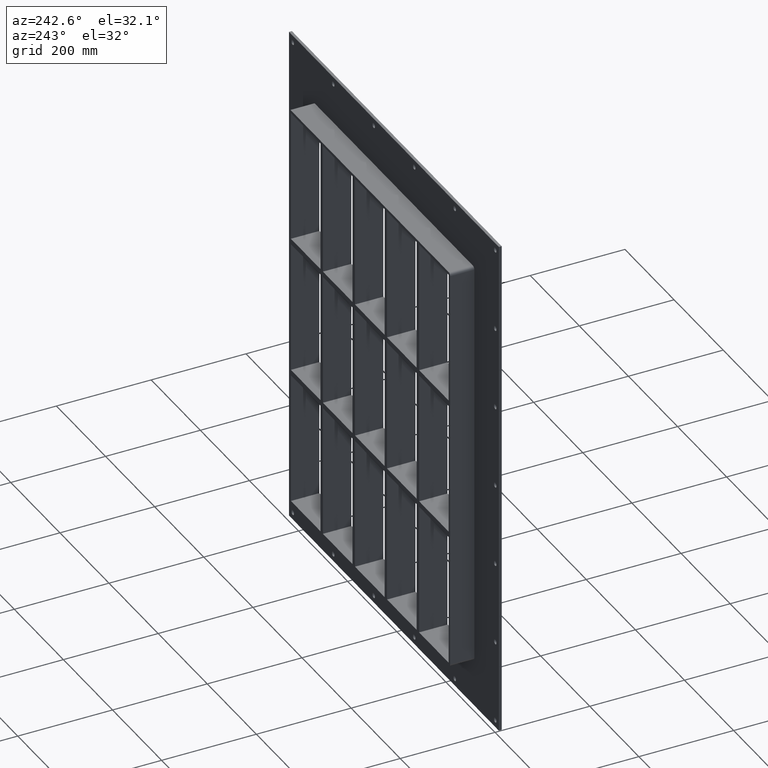
[diagram: clean part render]
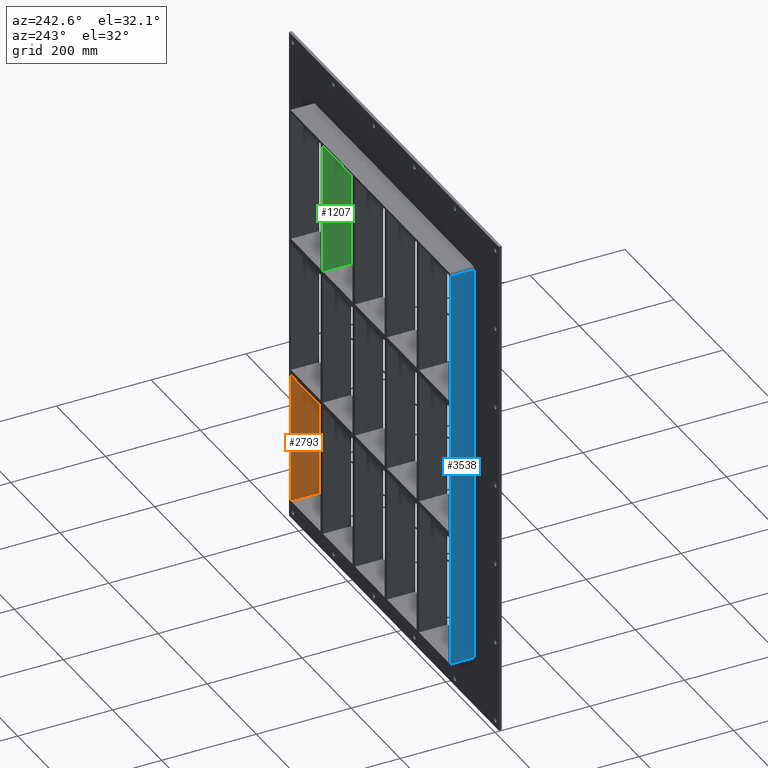
[diagram: same view with three faces highlighted in distinct colors, each labeled with its STEP entity id]
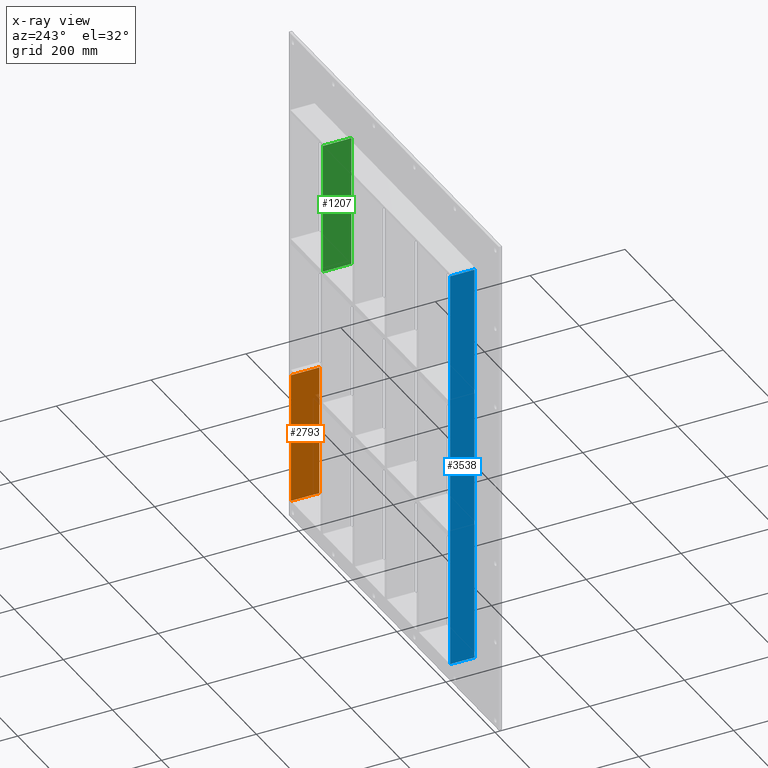
[diagram: x-ray of the same camera — body ghosted, the three highlighted faces saturated]
A machine part, auxiliary view with three faces highlighted in distinct colors.
The next image is the same camera in x-ray (body ghosted, the three faces saturated) — at least one of them is partly hidden behind the body in this view.
Their STEP definitions:

[orange] entity #2793 — the highlighted planar face has unit normal (1, 0, 0).
#1835=CARTESIAN_POINT('',(321.25000000000006,57.0,-429.00000000000006));
#1836=VERTEX_POINT('',#1835);
#1843=CARTESIAN_POINT('',(321.25000000000006,57.0,-151.00000000000929));
#1844=VERTEX_POINT('',#1843);
#1845=CARTESIAN_POINT('',(321.25000000000006,57.0,-429.00000000000006));
#1846=DIRECTION('',(0.0,0.0,1.0));
#1847=VECTOR('',#1846,277.99999999999079);
#1848=LINE('',#1845,#1847);
#1849=EDGE_CURVE('',#1836,#1844,#1848,.T.);
#2262=CARTESIAN_POINT('',(321.25000000000006,-3.0,-429.00000000000006));
#2263=VERTEX_POINT('',#2262);
#2270=CARTESIAN_POINT('',(321.25000000000006,56.999999999999993,-429.00000000000006));
#2271=DIRECTION('',(0.0,-1.0,0.0));
#2272=VECTOR('',#2271,59.999999999999993);
#2273=LINE('',#2270,#2272);
#2274=EDGE_CURVE('',#1836,#2263,#2273,.T.);
#2520=CARTESIAN_POINT('',(321.25,-3.0,-151.00000000000929));
#2521=VERTEX_POINT('',#2520);
#2528=CARTESIAN_POINT('',(321.25000000000006,-3.0,-151.00000000000927));
#2529=DIRECTION('',(0.0,0.0,-1.0));
#2530=VECTOR('',#2529,277.99999999999079);
#2531=LINE('',#2528,#2530);
#2532=EDGE_CURVE('',#2521,#2263,#2531,.T.);
#2579=CARTESIAN_POINT('',(321.25000000000006,-3.0,-151.00000000000929));
#2580=DIRECTION('',(0.0,1.0,0.0));
#2581=VECTOR('',#2580,60.000000000000007);
#2582=LINE('',#2579,#2581);
#2583=EDGE_CURVE('',#2521,#1844,#2582,.T.);
#2782=CARTESIAN_POINT('',(321.25000000000006,0.0,429.00000000000006));
#2783=DIRECTION('',(1.0,0.0,0.0));
#2784=DIRECTION('',(0.0,0.0,-1.0));
#2785=AXIS2_PLACEMENT_3D('',#2782,#2783,#2784);
#2786=PLANE('',#2785);
#2787=ORIENTED_EDGE('',*,*,#2583,.T.);
#2788=ORIENTED_EDGE('',*,*,#1849,.F.);
#2789=ORIENTED_EDGE('',*,*,#2274,.T.);
#2790=ORIENTED_EDGE('',*,*,#2532,.F.);
#2791=EDGE_LOOP('',(#2787,#2788,#2789,#2790));
#2792=FACE_OUTER_BOUND('',#2791,.T.);
#2793=ADVANCED_FACE('',(#2792),#2786,.F.);

[blue] entity #3538 — the highlighted planar face has unit normal (-1, 0, 0).
#1480=CARTESIAN_POINT('',(-327.25000000000011,57.0,-429.00000000000006));
#1481=VERTEX_POINT('',#1480);
#1489=CARTESIAN_POINT('',(-327.25000000000011,57.0,429.00000000000006));
#1490=VERTEX_POINT('',#1489);
#1491=CARTESIAN_POINT('',(-327.25000000000011,57.0,-429.00000000000006));
#1492=DIRECTION('',(0.0,0.0,1.0));
#1493=VECTOR('',#1492,858.0);
#1494=LINE('',#1491,#1493);
#1495=EDGE_CURVE('',#1481,#1490,#1494,.T.);
#2971=CARTESIAN_POINT('',(-327.25000000000011,6.000000000000001,-429.00000000000006));
#2972=VERTEX_POINT('',#2971);
#3022=CARTESIAN_POINT('',(-327.25000000000011,6.000000000000001,429.00000000000006));
#3023=VERTEX_POINT('',#3022);
#3031=CARTESIAN_POINT('',(-327.25000000000011,6.000000000000001,-429.00000000000006));
#3032=DIRECTION('',(0.0,0.0,1.0));
#3033=VECTOR('',#3032,858.0);
#3034=LINE('',#3031,#3033);
#3035=EDGE_CURVE('',#2972,#3023,#3034,.T.);
#3511=CARTESIAN_POINT('',(-327.25000000000011,6.000000000000001,-429.00000000000006));
#3512=DIRECTION('',(0.0,1.0,0.0));
#3513=VECTOR('',#3512,51.0);
#3514=LINE('',#3511,#3513);
#3515=EDGE_CURVE('',#2972,#1481,#3514,.T.);
#3522=CARTESIAN_POINT('',(-327.25000000000011,0.0,-435.0));
#3523=DIRECTION('',(-1.0,0.0,0.0));
#3524=DIRECTION('',(0.0,0.0,1.0));
#3525=AXIS2_PLACEMENT_3D('',#3522,#3523,#3524);
#3526=PLANE('',#3525);
#3527=ORIENTED_EDGE('',*,*,#3035,.T.);
#3528=CARTESIAN_POINT('',(-327.25000000000011,57.0,429.00000000000006));
#3529=DIRECTION('',(0.0,-1.0,0.0));
#3530=VECTOR('',#3529,51.0);
#3531=LINE('',#3528,#3530);
#3532=EDGE_CURVE('',#1490,#3023,#3531,.T.);
#3533=ORIENTED_EDGE('',*,*,#3532,.F.);
#3534=ORIENTED_EDGE('',*,*,#1495,.F.);
#3535=ORIENTED_EDGE('',*,*,#3515,.F.);
#3536=EDGE_LOOP('',(#3527,#3533,#3534,#3535));
#3537=FACE_OUTER_BOUND('',#3536,.T.);
#3538=ADVANCED_FACE('',(#3537),#3526,.T.);

[green] entity #1207 — the highlighted planar face has unit normal (-1, 0, 0).
#1049=CARTESIAN_POINT('',(190.74999999999875,57.0,150.99999999999994));
#1050=VERTEX_POINT('',#1049);
#1051=CARTESIAN_POINT('',(190.74999999999875,-3.0,150.99999999999994));
#1052=VERTEX_POINT('',#1051);
#1053=CARTESIAN_POINT('',(190.74999999999875,57.0,150.99999999999994));
#1054=DIRECTION('',(0.0,-1.0,0.0));
#1055=VECTOR('',#1054,60.0);
#1056=LINE('',#1053,#1055);
#1057=EDGE_CURVE('',#1050,#1052,#1056,.T.);
#1177=CARTESIAN_POINT('',(190.74999999999881,-3.0,-429.00000000000006));
#1178=DIRECTION('',(-1.0,0.0,0.0));
#1179=DIRECTION('',(0.0,0.0,1.0));
#1180=AXIS2_PLACEMENT_3D('',#1177,#1178,#1179);
#1181=PLANE('',#1180);
#1182=ORIENTED_EDGE('',*,*,#1057,.T.);
#1183=CARTESIAN_POINT('',(190.74999999999872,-3.0,429.00000000000006));
#1184=VERTEX_POINT('',#1183);
#1185=CARTESIAN_POINT('',(190.74999999999872,-3.0,150.99999999999994));
#1186=DIRECTION('',(0.0,0.0,1.0));
#1187=VECTOR('',#1186,278.00000000000011);
#1188=LINE('',#1185,#1187);
#1189=EDGE_CURVE('',#1052,#1184,#1188,.T.);
#1190=ORIENTED_EDGE('',*,*,#1189,.T.);
#1191=CARTESIAN_POINT('',(190.74999999999872,57.0,429.00000000000006));
#1192=VERTEX_POINT('',#1191);
#1193=CARTESIAN_POINT('',(190.74999999999875,57.000000000000007,429.00000000000006));
#1194=DIRECTION('',(0.0,-1.0,0.0));
#1195=VECTOR('',#1194,60.000000000000007);
#1196=LINE('',#1193,#1195);
#1197=EDGE_CURVE('',#1192,#1184,#1196,.T.);
#1198=ORIENTED_EDGE('',*,*,#1197,.F.);
#1199=CARTESIAN_POINT('',(190.74999999999872,57.0,150.99999999999994));
#1200=DIRECTION('',(0.0,0.0,1.0));
#1201=VECTOR('',#1200,278.00000000000011);
#1202=LINE('',#1199,#1201);
#1203=EDGE_CURVE('',#1050,#1192,#1202,.T.);
#1204=ORIENTED_EDGE('',*,*,#1203,.F.);
#1205=EDGE_LOOP('',(#1182,#1190,#1198,#1204));
#1206=FACE_OUTER_BOUND('',#1205,.T.);
#1207=ADVANCED_FACE('',(#1206),#1181,.T.);